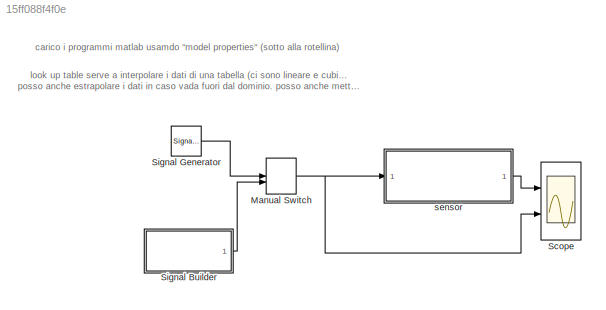
MODEL slx_15ff088f4f0e
KIND model
CONFIG InitFcn = load 'variabili.mat'
BLOCK [ManualSwitch] Manual Switch
  CurrentSetting = 0
BLOCK [Scope] Scope
  DataFormat = StructureWithTime
  Floating = off
  NumInputPorts = 2
  Ports = [2]
  SampleTime = 0
  ShowLegends = off
  YMax = 5~5
  YMin = -5~-5
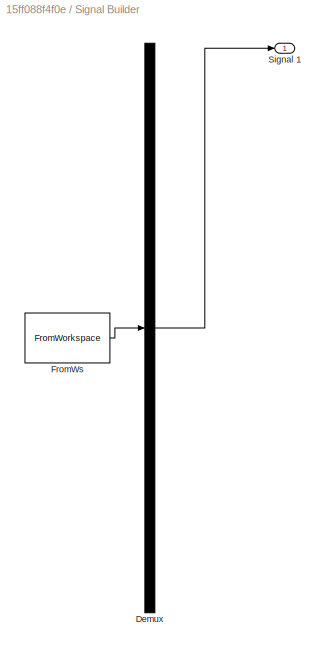
BLOCK [SubSystem] Signal Builder
  ClipboardFcn = sigbuilder_block('clipboard');
  CloseFcn = sigbuilder_block('close');
  ContinueFcn = sigbuilder_block('continue');
  CopyFcn = sigbuilder_block('copy');
  DeleteFcn = sigbuilder_block('delete');
  FunctionWithSeparateData = off
  LoadFcn = sigbuilder_block('load');
  MaskHideContents = on
  MinAlgLoopOccurrences = off
  ModelCloseFcn = sigbuilder_block('modelClose');
  NameChangeFcn = sigbuilder_block('namechange');
  Opaque = off
  OpenFcn = sigbuilder_block('open',[437.25 199.5 550.5 399.75 ]);
  PauseFcn = sigbuilder_block('pause');
  Ports = [0, 1]
  PreSaveFcn = sigbuilder_block('preSave');
  PropExecContextOutsideSubsystem = off
  RTWSystemCode = Auto
  RequestExecContextInheritance = off
  StartFcn = sigbuilder_block('start');
  StopFcn = sigbuilder_block('stop');
  Tag = STV Subsys
BLOCK [Demux] Signal Builder/Demux
  Outputs = 1
  Ports = [1, 1]
  Tag = STV Demux
BLOCK [FromWorkspace] Signal Builder/FromWs
  SampleTime = 0
  Tag = STV FromWs
  VariableName = tuvar
  ZeroCross = on
BLOCK [Outport] Signal Builder/Signal 1
  IconDisplay = Port number
  Tag = STV Outport
BLOCK [SignalGenerator] Signal Generator
  Amplitude = pi/2
  Ports = [0, 1]
  WaveForm = sawtooth
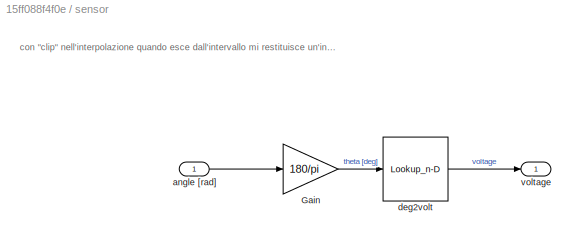
BLOCK [SubSystem] sensor
  FunctionWithSeparateData = off
  MaskHideContents = off
  MinAlgLoopOccurrences = off
  Opaque = off
  Ports = [1, 1]
  PropExecContextOutsideSubsystem = off
  RTWSystemCode = Auto
  RequestExecContextInheritance = off
BLOCK [Gain] sensor/Gain
  Gain = 180/pi
  OutDataTypeStr = Inherit: Inherit via internal rule
  ParamDataTypeStr = Inherit: Inherit via internal rule
  SaturateOnIntegerOverflow = off
BLOCK [Inport] sensor/angle [rad]
  IconDisplay = Port number
BLOCK [Lookup_n-D] sensor/deg2volt
  BreakpointsForDimension1 = var
  ExtrapMethod = Clip
  InternalRulePriority = Speed
  NumberOfTableDimensions = 1
  Ports = [1, 1]
  RndMeth = Simplest
  Table = var2
  TableMax = [4.5]
  TableMin = [0.5]
BLOCK [Outport] sensor/voltage
  IconDisplay = Port number
ANNOTATION (root): carico i programmi matlab usamdo "model properties" (sotto alla rotellina)
ANNOTATION (root): look up table serve a interpolare i dati di una tabella (ci sono lineare e cubic spline) posso anche estrapolare i dati in caso vada fuori dal dominio. posso anche mettere una saturazione.
ANNOTATION sensor: con "clip" nell'interpolazione quando esce dall'intervallo mi restituisce un'interpolazione costante uguale al segnale di saturazione
NET Manual Switch:1 -> Scope:2, sensor:1
LINE Signal Builder:1 -> Manual Switch:2
LINE Signal Generator:1 -> Manual Switch:1
LINE sensor/Gain:1 -> sensor/deg2volt:1
LINE sensor/angle [rad]:1 -> sensor/Gain:1
LINE sensor/deg2volt:1 -> sensor/voltage:1
LINE sensor:1 -> Scope:1
note: NET lines group one-source signal fan-out (src -> all destinations, sorted); 1:1 wires keep LINE
